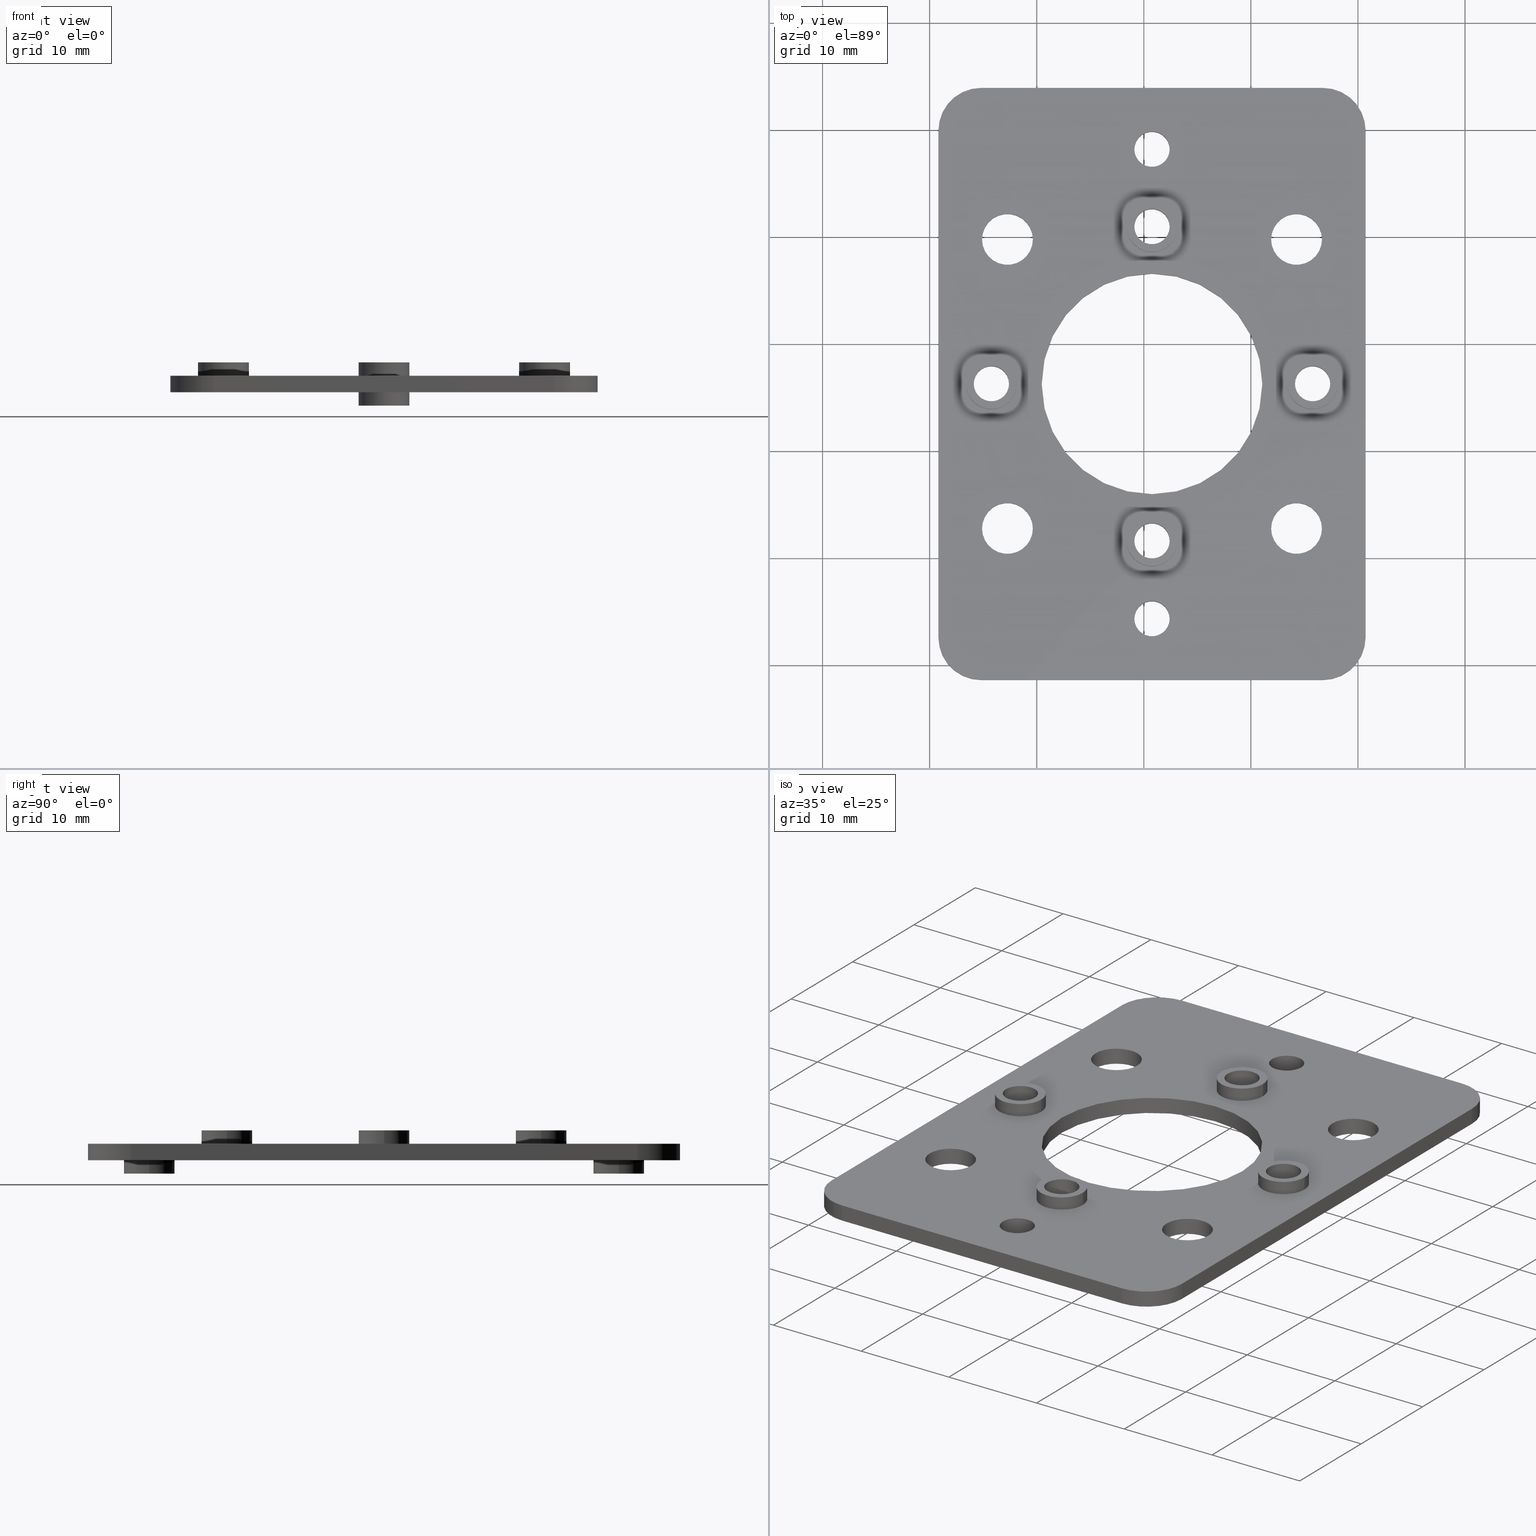
[diagram: canonical four-view strip — front | top / right | iso, engineering-drawing reading convention]
A machine part, canonical four-view strip (front | top / right | iso — engineering-drawing reading convention). The complete STEP part file that produces these views, byte-faithful:
ISO-10303-21;
HEADER;
/****************************************************************
 * Generated by software with PDE/Lib inside                    *
 * PDElib Version v51a, created Thu 12/14/2006                  *
 * International Technegroup Inc. (www.iti-oh.com)              *
 ****************************************************************/
FILE_DESCRIPTION((''),'2;1');
FILE_NAME('M:\\cad\\1PB\\ALP101\\ALP101.stp','2007-11-21T14:34:21',('Philipp'),(''),'Autodesk Inventor 2008','Autodesk Inventor 2008','');
FILE_SCHEMA(('AUTOMOTIVE_DESIGN { 1 0 10303 214 1 1 1 1 }'));
ENDSEC;
DATA;
#5=APPLICATION_CONTEXT('automotive design');
#6=APPLICATION_PROTOCOL_DEFINITION('International Standard','automotive_design',2001,#5);
#7=PRODUCT_CONTEXT('',#5,'mechanical');
#8=PRODUCT('ALP101','ALP101',$,(#7));
#9=PRODUCT_RELATED_PRODUCT_CATEGORY('part',$,(#8));
#10=PRODUCT_DEFINITION_FORMATION('',$,#8);
#11=PRODUCT_DEFINITION_CONTEXT('part definition',#5,'design');
#12=PRODUCT_DEFINITION('',$,#10,#11);
#18=(NAMED_UNIT(*)PLANE_ANGLE_UNIT()SI_UNIT($,.RADIAN.));
#19=DIMENSIONAL_EXPONENTS(0.0,0.0,0.0,0.0,0.0,0.0,0.0);
#20=PLANE_ANGLE_MEASURE_WITH_UNIT(PLANE_ANGLE_MEASURE(0.017453292500000),#18);
#24=(CONVERSION_BASED_UNIT('DEGREE',#20)NAMED_UNIT(#19)PLANE_ANGLE_UNIT());
#28=(NAMED_UNIT(*)SI_UNIT($,.STERADIAN.)SOLID_ANGLE_UNIT());
#32=(LENGTH_UNIT()NAMED_UNIT(*)SI_UNIT(.MILLI.,.METRE.));
#34=UNCERTAINTY_MEASURE_WITH_UNIT(LENGTH_MEASURE(0.010000000000000),#32,'DISTANCE_ACCURACY_VALUE','');
#36=(GEOMETRIC_REPRESENTATION_CONTEXT(3)GLOBAL_UNCERTAINTY_ASSIGNED_CONTEXT((#34))GLOBAL_UNIT_ASSIGNED_CONTEXT((#24,#28,#32))REPRESENTATION_CONTEXT('None','None'));
#37=AXIS2_PLACEMENT_3D('',#38,#39,#40);
#38=CARTESIAN_POINT('',(0.0,0.0,0.0));
#39=DIRECTION('',(0.0,0.0,1.0));
#40=DIRECTION('',(1.0,0.0,0.0));
#41=SHAPE_REPRESENTATION('',(#37),#36);
#42=PRODUCT_DEFINITION_SHAPE('','',#12);
#43=SHAPE_DEFINITION_REPRESENTATION(#42,#41);
#49=(NAMED_UNIT(*)PLANE_ANGLE_UNIT()SI_UNIT($,.RADIAN.));
#50=DIMENSIONAL_EXPONENTS(0.0,0.0,0.0,0.0,0.0,0.0,0.0);
#51=PLANE_ANGLE_MEASURE_WITH_UNIT(PLANE_ANGLE_MEASURE(0.017453292500000),#49);
#55=(CONVERSION_BASED_UNIT('DEGREE',#51)NAMED_UNIT(#50)PLANE_ANGLE_UNIT());
#59=(NAMED_UNIT(*)SI_UNIT($,.STERADIAN.)SOLID_ANGLE_UNIT());
#63=(LENGTH_UNIT()NAMED_UNIT(*)SI_UNIT(.MILLI.,.METRE.));
#65=UNCERTAINTY_MEASURE_WITH_UNIT(LENGTH_MEASURE(0.000001000000000),#63,'DISTANCE_ACCURACY_VALUE','');
#67=(GEOMETRIC_REPRESENTATION_CONTEXT(3)GLOBAL_UNCERTAINTY_ASSIGNED_CONTEXT((#65))GLOBAL_UNIT_ASSIGNED_CONTEXT((#55,#59,#63))REPRESENTATION_CONTEXT('','3D'));
#68=CARTESIAN_POINT('',(-19.233154132545625,-15.660901912274152,2.800000000000000));
#69=DIRECTION('',(0.0,0.0,-1.0));
#70=DIRECTION('',(-1.0,0.0,0.0));
#71=AXIS2_PLACEMENT_3D('',#68,#69,#70);
#72=CYLINDRICAL_SURFACE('',#71,1.650000000000000);
#73=CARTESIAN_POINT('',(-17.583154132545623,-15.660901912274152,-1.250000000000000));
#74=VERTEX_POINT('',#73);
#75=CARTESIAN_POINT('',(-19.233154132545625,-15.660901912274152,-1.250000000000000));
#76=DIRECTION('',(0.0,0.0,1.0));
#77=DIRECTION('',(-1.0,0.0,0.0));
#78=AXIS2_PLACEMENT_3D('',#75,#76,#77);
#79=CIRCLE('',#78,1.650000000000000);
#80=EDGE_CURVE('',#74,#74,#79,.T.);
#81=ORIENTED_EDGE('',*,*,#80,.F.);
#82=EDGE_LOOP('',(#81));
#83=FACE_OUTER_BOUND('',#82,.T.);
#84=CARTESIAN_POINT('',(-17.583154132545623,-15.660901912274152,1.550000000000000));
#85=VERTEX_POINT('',#84);
#86=CARTESIAN_POINT('',(-19.233154132545625,-15.660901912274152,1.550000000000000));
#87=DIRECTION('',(0.0,0.0,-1.0));
#88=DIRECTION('',(-1.0,0.0,0.0));
#89=AXIS2_PLACEMENT_3D('',#86,#87,#88);
#90=CIRCLE('',#89,1.650000000000000);
#91=EDGE_CURVE('',#85,#85,#90,.T.);
#92=ORIENTED_EDGE('',*,*,#91,.F.);
#93=EDGE_LOOP('',(#92));
#94=FACE_BOUND('',#93,.T.);
#95=ADVANCED_FACE('',(#83,#94),#72,.F.);
#96=CARTESIAN_POINT('',(-19.233154132545625,28.189098087725849,2.800000000000000));
#97=DIRECTION('',(0.0,0.0,-1.0));
#98=DIRECTION('',(-1.0,0.0,0.0));
#99=AXIS2_PLACEMENT_3D('',#96,#97,#98);
#100=CYLINDRICAL_SURFACE('',#99,1.650000000000000);
#101=CARTESIAN_POINT('',(-17.583154132545623,28.189098087725849,-1.250000000000000));
#102=VERTEX_POINT('',#101);
#103=CARTESIAN_POINT('',(-19.233154132545625,28.189098087725849,-1.250000000000000));
#104=DIRECTION('',(0.0,0.0,1.0));
#105=DIRECTION('',(-1.0,0.0,0.0));
#106=AXIS2_PLACEMENT_3D('',#103,#104,#105);
#107=CIRCLE('',#106,1.650000000000000);
#108=EDGE_CURVE('',#102,#102,#107,.T.);
#109=ORIENTED_EDGE('',*,*,#108,.F.);
#110=EDGE_LOOP('',(#109));
#111=FACE_OUTER_BOUND('',#110,.T.);
#112=CARTESIAN_POINT('',(-17.583154132545623,28.189098087725849,1.550000000000000));
#113=VERTEX_POINT('',#112);
#114=CARTESIAN_POINT('',(-19.233154132545625,28.189098087725849,1.550000000000000));
#115=DIRECTION('',(0.0,0.0,-1.0));
#116=DIRECTION('',(-1.0,0.0,0.0));
#117=AXIS2_PLACEMENT_3D('',#114,#115,#116);
#118=CIRCLE('',#117,1.650000000000000);
#119=EDGE_CURVE('',#113,#113,#118,.T.);
#120=ORIENTED_EDGE('',*,*,#119,.F.);
#121=EDGE_LOOP('',(#120));
#122=FACE_BOUND('',#121,.T.);
#123=ADVANCED_FACE('',(#111,#122),#100,.F.);
#124=CARTESIAN_POINT('',(-4.233154132545627,6.264098087725847,2.800000000000000));
#125=DIRECTION('',(0.0,0.0,-1.0));
#126=DIRECTION('',(-1.0,0.0,0.0));
#127=AXIS2_PLACEMENT_3D('',#124,#125,#126);
#128=CYLINDRICAL_SURFACE('',#127,1.650000000000000);
#129=CARTESIAN_POINT('',(-2.583154132545626,6.264098087725847,0.0));
#130=VERTEX_POINT('',#129);
#131=CARTESIAN_POINT('',(-4.233154132545627,6.264098087725847,0.0));
#132=DIRECTION('',(0.0,0.0,1.0));
#133=DIRECTION('',(-1.0,0.0,0.0));
#134=AXIS2_PLACEMENT_3D('',#131,#132,#133);
#135=CIRCLE('',#134,1.650000000000000);
#136=EDGE_CURVE('',#130,#130,#135,.T.);
#137=ORIENTED_EDGE('',*,*,#136,.F.);
#138=EDGE_LOOP('',(#137));
#139=FACE_OUTER_BOUND('',#138,.T.);
#140=CARTESIAN_POINT('',(-2.583154132545626,6.264098087725847,2.800000000000000));
#141=VERTEX_POINT('',#140);
#142=CARTESIAN_POINT('',(-4.233154132545627,6.264098087725847,2.800000000000000));
#143=DIRECTION('',(0.0,0.0,-1.0));
#144=DIRECTION('',(-1.0,0.0,0.0));
#145=AXIS2_PLACEMENT_3D('',#142,#143,#144);
#146=CIRCLE('',#145,1.650000000000000);
#147=EDGE_CURVE('',#141,#141,#146,.T.);
#148=ORIENTED_EDGE('',*,*,#147,.F.);
#149=EDGE_LOOP('',(#148));
#150=FACE_BOUND('',#149,.T.);
#151=ADVANCED_FACE('',(#139,#150),#128,.F.);
#152=CARTESIAN_POINT('',(-19.233154132545625,-8.410901912274156,2.800000000000000));
#153=DIRECTION('',(0.0,0.0,-1.0));
#154=DIRECTION('',(-1.0,0.0,0.0));
#155=AXIS2_PLACEMENT_3D('',#152,#153,#154);
#156=CYLINDRICAL_SURFACE('',#155,1.650000000000000);
#157=CARTESIAN_POINT('',(-17.583154132545623,-8.410901912274156,0.0));
#158=VERTEX_POINT('',#157);
#159=CARTESIAN_POINT('',(-19.233154132545625,-8.410901912274156,0.0));
#160=DIRECTION('',(0.0,0.0,1.0));
#161=DIRECTION('',(-1.0,0.0,0.0));
#162=AXIS2_PLACEMENT_3D('',#159,#160,#161);
#163=CIRCLE('',#162,1.650000000000000);
#164=EDGE_CURVE('',#158,#158,#163,.T.);
#165=ORIENTED_EDGE('',*,*,#164,.F.);
#166=EDGE_LOOP('',(#165));
#167=FACE_OUTER_BOUND('',#166,.T.);
#168=CARTESIAN_POINT('',(-17.583154132545623,-8.410901912274156,2.800000000000000));
#169=VERTEX_POINT('',#168);
#170=CARTESIAN_POINT('',(-19.233154132545625,-8.410901912274156,2.800000000000000));
#171=DIRECTION('',(0.0,0.0,-1.0));
#172=DIRECTION('',(-1.0,0.0,0.0));
#173=AXIS2_PLACEMENT_3D('',#170,#171,#172);
#174=CIRCLE('',#173,1.650000000000000);
#175=EDGE_CURVE('',#169,#169,#174,.T.);
#176=ORIENTED_EDGE('',*,*,#175,.F.);
#177=EDGE_LOOP('',(#176));
#178=FACE_BOUND('',#177,.T.);
#179=ADVANCED_FACE('',(#167,#178),#156,.F.);
#180=CARTESIAN_POINT('',(-34.233154132545629,6.264098087725847,2.800000000000000));
#181=DIRECTION('',(0.0,0.0,-1.0));
#182=DIRECTION('',(-1.0,0.0,0.0));
#183=AXIS2_PLACEMENT_3D('',#180,#181,#182);
#184=CYLINDRICAL_SURFACE('',#183,1.650000000000000);
#185=CARTESIAN_POINT('',(-32.583154132545630,6.264098087725847,0.0));
#186=VERTEX_POINT('',#185);
#187=CARTESIAN_POINT('',(-34.233154132545629,6.264098087725847,0.0));
#188=DIRECTION('',(0.0,0.0,1.0));
#189=DIRECTION('',(-1.0,0.0,0.0));
#190=AXIS2_PLACEMENT_3D('',#187,#188,#189);
#191=CIRCLE('',#190,1.650000000000000);
#192=EDGE_CURVE('',#186,#186,#191,.T.);
#193=ORIENTED_EDGE('',*,*,#192,.F.);
#194=EDGE_LOOP('',(#193));
#195=FACE_OUTER_BOUND('',#194,.T.);
#196=CARTESIAN_POINT('',(-32.583154132545630,6.264098087725847,2.800000000000000));
#197=VERTEX_POINT('',#196);
#198=CARTESIAN_POINT('',(-34.233154132545629,6.264098087725847,2.800000000000000));
#199=DIRECTION('',(0.0,0.0,-1.0));
#200=DIRECTION('',(-1.0,0.0,0.0));
#201=AXIS2_PLACEMENT_3D('',#198,#199,#200);
#202=CIRCLE('',#201,1.650000000000000);
#203=EDGE_CURVE('',#197,#197,#202,.T.);
#204=ORIENTED_EDGE('',*,*,#203,.F.);
#205=EDGE_LOOP('',(#204));
#206=FACE_BOUND('',#205,.T.);
#207=ADVANCED_FACE('',(#195,#206),#184,.F.);
#208=CARTESIAN_POINT('',(-19.233154132545625,20.939098087725849,2.800000000000000));
#209=DIRECTION('',(0.0,0.0,-1.0));
#210=DIRECTION('',(-1.0,0.0,0.0));
#211=AXIS2_PLACEMENT_3D('',#208,#209,#210);
#212=CYLINDRICAL_SURFACE('',#211,1.650000000000000);
#213=CARTESIAN_POINT('',(-17.583154132545623,20.939098087725849,0.0));
#214=VERTEX_POINT('',#213);
#215=CARTESIAN_POINT('',(-19.233154132545625,20.939098087725849,0.0));
#216=DIRECTION('',(0.0,0.0,1.0));
#217=DIRECTION('',(-1.0,0.0,0.0));
#218=AXIS2_PLACEMENT_3D('',#215,#216,#217);
#219=CIRCLE('',#218,1.650000000000000);
#220=EDGE_CURVE('',#214,#214,#219,.T.);
#221=ORIENTED_EDGE('',*,*,#220,.F.);
#222=EDGE_LOOP('',(#221));
#223=FACE_OUTER_BOUND('',#222,.T.);
#224=CARTESIAN_POINT('',(-17.583154132545623,20.939098087725849,2.800000000000000));
#225=VERTEX_POINT('',#224);
#226=CARTESIAN_POINT('',(-19.233154132545625,20.939098087725849,2.800000000000000));
#227=DIRECTION('',(0.0,0.0,-1.0));
#228=DIRECTION('',(-1.0,0.0,0.0));
#229=AXIS2_PLACEMENT_3D('',#226,#227,#228);
#230=CIRCLE('',#229,1.650000000000000);
#231=EDGE_CURVE('',#225,#225,#230,.T.);
#232=ORIENTED_EDGE('',*,*,#231,.F.);
#233=EDGE_LOOP('',(#232));
#234=FACE_BOUND('',#233,.T.);
#235=ADVANCED_FACE('',(#223,#234),#212,.F.);
#236=CARTESIAN_POINT('',(-19.233154132545625,28.189098087725849,1.550000000000000));
#237=DIRECTION('',(0.0,0.0,-1.0));
#238=DIRECTION('',(-1.0,0.0,0.0));
#239=AXIS2_PLACEMENT_3D('',#236,#237,#238);
#240=CYLINDRICAL_SURFACE('',#239,2.375000000000000);
#241=CARTESIAN_POINT('',(-16.858154132545625,28.189098087725849,-1.250000000000000));
#242=VERTEX_POINT('',#241);
#243=CARTESIAN_POINT('',(-19.233154132545625,28.189098087725849,-1.250000000000000));
#244=DIRECTION('',(0.0,0.0,1.0));
#245=DIRECTION('',(-1.0,0.0,0.0));
#246=AXIS2_PLACEMENT_3D('',#243,#244,#245);
#247=CIRCLE('',#246,2.375000000000000);
#248=EDGE_CURVE('',#242,#242,#247,.T.);
#249=ORIENTED_EDGE('',*,*,#248,.T.);
#250=EDGE_LOOP('',(#249));
#251=FACE_OUTER_BOUND('',#250,.T.);
#252=CARTESIAN_POINT('',(-16.858154132545625,28.189098087725849,0.0));
#253=VERTEX_POINT('',#252);
#254=CARTESIAN_POINT('',(-19.233154132545625,28.189098087725849,0.0));
#255=DIRECTION('',(0.0,0.0,1.0));
#256=DIRECTION('',(-1.0,0.0,0.0));
#257=AXIS2_PLACEMENT_3D('',#254,#255,#256);
#258=CIRCLE('',#257,2.375000000000000);
#259=EDGE_CURVE('',#253,#253,#258,.T.);
#260=ORIENTED_EDGE('',*,*,#259,.F.);
#261=EDGE_LOOP('',(#260));
#262=FACE_BOUND('',#261,.T.);
#263=ADVANCED_FACE('',(#251,#262),#240,.T.);
#264=CARTESIAN_POINT('',(-19.233154132545625,6.264098087725847,-1.250000000000000));
#265=DIRECTION('',(0.0,0.0,-1.0));
#266=DIRECTION('',(-1.0,0.0,0.0));
#267=AXIS2_PLACEMENT_3D('',#264,#265,#266);
#268=PLANE('',#267);
#269=ORIENTED_EDGE('',*,*,#248,.F.);
#270=EDGE_LOOP('',(#269));
#271=FACE_OUTER_BOUND('',#270,.T.);
#272=ORIENTED_EDGE('',*,*,#108,.T.);
#273=EDGE_LOOP('',(#272));
#274=FACE_BOUND('',#273,.T.);
#275=ADVANCED_FACE('',(#271,#274),#268,.T.);
#276=CARTESIAN_POINT('',(-19.233154132545625,-15.660901912274154,1.550000000000000));
#277=DIRECTION('',(0.0,0.0,-1.0));
#278=DIRECTION('',(-1.0,0.0,0.0));
#279=AXIS2_PLACEMENT_3D('',#276,#277,#278);
#280=CYLINDRICAL_SURFACE('',#279,2.375000000000000);
#281=CARTESIAN_POINT('',(-16.858154132545625,-15.660901912274154,-1.250000000000000));
#282=VERTEX_POINT('',#281);
#283=CARTESIAN_POINT('',(-19.233154132545625,-15.660901912274154,-1.250000000000000));
#284=DIRECTION('',(0.0,0.0,1.0));
#285=DIRECTION('',(-1.0,0.0,0.0));
#286=AXIS2_PLACEMENT_3D('',#283,#284,#285);
#287=CIRCLE('',#286,2.375000000000000);
#288=EDGE_CURVE('',#282,#282,#287,.T.);
#289=ORIENTED_EDGE('',*,*,#288,.T.);
#290=EDGE_LOOP('',(#289));
#291=FACE_OUTER_BOUND('',#290,.T.);
#292=CARTESIAN_POINT('',(-16.858154132545625,-15.660901912274154,0.0));
#293=VERTEX_POINT('',#292);
#294=CARTESIAN_POINT('',(-19.233154132545625,-15.660901912274154,0.0));
#295=DIRECTION('',(0.0,0.0,1.0));
#296=DIRECTION('',(-1.0,0.0,0.0));
#297=AXIS2_PLACEMENT_3D('',#294,#295,#296);
#298=CIRCLE('',#297,2.375000000000000);
#299=EDGE_CURVE('',#293,#293,#298,.T.);
#300=ORIENTED_EDGE('',*,*,#299,.F.);
#301=EDGE_LOOP('',(#300));
#302=FACE_BOUND('',#301,.T.);
#303=ADVANCED_FACE('',(#291,#302),#280,.T.);
#304=CARTESIAN_POINT('',(-19.233154132545625,6.264098087725847,-1.250000000000000));
#305=DIRECTION('',(0.0,0.0,-1.0));
#306=DIRECTION('',(-1.0,0.0,0.0));
#307=AXIS2_PLACEMENT_3D('',#304,#305,#306);
#308=PLANE('',#307);
#309=ORIENTED_EDGE('',*,*,#288,.F.);
#310=EDGE_LOOP('',(#309));
#311=FACE_OUTER_BOUND('',#310,.T.);
#312=ORIENTED_EDGE('',*,*,#80,.T.);
#313=EDGE_LOOP('',(#312));
#314=FACE_BOUND('',#313,.T.);
#315=ADVANCED_FACE('',(#311,#314),#308,.T.);
#316=CARTESIAN_POINT('',(-4.233154132545627,6.264098087725847,1.550000000000000));
#317=DIRECTION('',(0.0,0.0,1.0));
#318=DIRECTION('',(-1.0,0.0,0.0));
#319=AXIS2_PLACEMENT_3D('',#316,#317,#318);
#320=CYLINDRICAL_SURFACE('',#319,2.375000000000000);
#321=CARTESIAN_POINT('',(-1.858154132545627,6.264098087725847,2.800000000000000));
#322=VERTEX_POINT('',#321);
#323=CARTESIAN_POINT('',(-4.233154132545627,6.264098087725847,2.800000000000000));
#324=DIRECTION('',(0.0,0.0,-1.0));
#325=DIRECTION('',(-1.0,0.0,0.0));
#326=AXIS2_PLACEMENT_3D('',#323,#324,#325);
#327=CIRCLE('',#326,2.375000000000000);
#328=EDGE_CURVE('',#322,#322,#327,.T.);
#329=ORIENTED_EDGE('',*,*,#328,.T.);
#330=EDGE_LOOP('',(#329));
#331=FACE_OUTER_BOUND('',#330,.T.);
#332=CARTESIAN_POINT('',(-1.858154132545627,6.264098087725847,1.550000000000000));
#333=VERTEX_POINT('',#332);
#334=CARTESIAN_POINT('',(-4.233154132545627,6.264098087725847,1.550000000000000));
#335=DIRECTION('',(0.0,0.0,-1.0));
#336=DIRECTION('',(-1.0,0.0,0.0));
#337=AXIS2_PLACEMENT_3D('',#334,#335,#336);
#338=CIRCLE('',#337,2.375000000000000);
#339=EDGE_CURVE('',#333,#333,#338,.T.);
#340=ORIENTED_EDGE('',*,*,#339,.F.);
#341=EDGE_LOOP('',(#340));
#342=FACE_BOUND('',#341,.T.);
#343=ADVANCED_FACE('',(#331,#342),#320,.T.);
#344=CARTESIAN_POINT('',(-4.233154132545627,6.264098087725847,2.800000000000000));
#345=DIRECTION('',(0.0,0.0,-1.0));
#346=DIRECTION('',(-1.0,0.0,0.0));
#347=AXIS2_PLACEMENT_3D('',#344,#345,#346);
#348=PLANE('',#347);
#349=ORIENTED_EDGE('',*,*,#328,.F.);
#350=EDGE_LOOP('',(#349));
#351=FACE_OUTER_BOUND('',#350,.T.);
#352=ORIENTED_EDGE('',*,*,#147,.T.);
#353=EDGE_LOOP('',(#352));
#354=FACE_BOUND('',#353,.T.);
#355=ADVANCED_FACE('',(#351,#354),#348,.F.);
#356=CARTESIAN_POINT('',(-34.233154132545629,6.264098087725847,1.550000000000000));
#357=DIRECTION('',(0.0,0.0,1.0));
#358=DIRECTION('',(-1.0,0.0,0.0));
#359=AXIS2_PLACEMENT_3D('',#356,#357,#358);
#360=CYLINDRICAL_SURFACE('',#359,2.375000000000000);
#361=CARTESIAN_POINT('',(-31.858154132545629,6.264098087725847,2.800000000000000));
#362=VERTEX_POINT('',#361);
#363=CARTESIAN_POINT('',(-34.233154132545629,6.264098087725847,2.800000000000000));
#364=DIRECTION('',(0.0,0.0,-1.0));
#365=DIRECTION('',(-1.0,0.0,0.0));
#366=AXIS2_PLACEMENT_3D('',#363,#364,#365);
#367=CIRCLE('',#366,2.375000000000000);
#368=EDGE_CURVE('',#362,#362,#367,.T.);
#369=ORIENTED_EDGE('',*,*,#368,.T.);
#370=EDGE_LOOP('',(#369));
#371=FACE_OUTER_BOUND('',#370,.T.);
#372=CARTESIAN_POINT('',(-31.858154132545629,6.264098087725847,1.550000000000000));
#373=VERTEX_POINT('',#372);
#374=CARTESIAN_POINT('',(-34.233154132545629,6.264098087725847,1.550000000000000));
#375=DIRECTION('',(0.0,0.0,-1.0));
#376=DIRECTION('',(-1.0,0.0,0.0));
#377=AXIS2_PLACEMENT_3D('',#374,#375,#376);
#378=CIRCLE('',#377,2.375000000000000);
#379=EDGE_CURVE('',#373,#373,#378,.T.);
#380=ORIENTED_EDGE('',*,*,#379,.F.);
#381=EDGE_LOOP('',(#380));
#382=FACE_BOUND('',#381,.T.);
#383=ADVANCED_FACE('',(#371,#382),#360,.T.);
#384=CARTESIAN_POINT('',(-34.233154132545629,6.264098087725847,2.800000000000000));
#385=DIRECTION('',(0.0,0.0,-1.0));
#386=DIRECTION('',(-1.0,0.0,0.0));
#387=AXIS2_PLACEMENT_3D('',#384,#385,#386);
#388=PLANE('',#387);
#389=ORIENTED_EDGE('',*,*,#368,.F.);
#390=EDGE_LOOP('',(#389));
#391=FACE_OUTER_BOUND('',#390,.T.);
#392=ORIENTED_EDGE('',*,*,#203,.T.);
#393=EDGE_LOOP('',(#392));
#394=FACE_BOUND('',#393,.T.);
#395=ADVANCED_FACE('',(#391,#394),#388,.F.);
#396=CARTESIAN_POINT('',(-19.233154132545625,-8.410901912274154,1.550000000000000));
#397=DIRECTION('',(0.0,0.0,1.0));
#398=DIRECTION('',(-1.0,0.0,0.0));
#399=AXIS2_PLACEMENT_3D('',#396,#397,#398);
#400=CYLINDRICAL_SURFACE('',#399,2.375000000000000);
#401=CARTESIAN_POINT('',(-16.858154132545625,-8.410901912274154,2.800000000000000));
#402=VERTEX_POINT('',#401);
#403=CARTESIAN_POINT('',(-19.233154132545625,-8.410901912274154,2.800000000000000));
#404=DIRECTION('',(0.0,0.0,-1.0));
#405=DIRECTION('',(-1.0,0.0,0.0));
#406=AXIS2_PLACEMENT_3D('',#403,#404,#405);
#407=CIRCLE('',#406,2.375000000000000);
#408=EDGE_CURVE('',#402,#402,#407,.T.);
#409=ORIENTED_EDGE('',*,*,#408,.T.);
#410=EDGE_LOOP('',(#409));
#411=FACE_OUTER_BOUND('',#410,.T.);
#412=CARTESIAN_POINT('',(-16.858154132545625,-8.410901912274154,1.550000000000000));
#413=VERTEX_POINT('',#412);
#414=CARTESIAN_POINT('',(-19.233154132545625,-8.410901912274154,1.550000000000000));
#415=DIRECTION('',(0.0,0.0,-1.0));
#416=DIRECTION('',(-1.0,0.0,0.0));
#417=AXIS2_PLACEMENT_3D('',#414,#415,#416);
#418=CIRCLE('',#417,2.375000000000000);
#419=EDGE_CURVE('',#413,#413,#418,.T.);
#420=ORIENTED_EDGE('',*,*,#419,.F.);
#421=EDGE_LOOP('',(#420));
#422=FACE_BOUND('',#421,.T.);
#423=ADVANCED_FACE('',(#411,#422),#400,.T.);
#424=CARTESIAN_POINT('',(-19.233154132545625,-8.410901912274154,2.800000000000000));
#425=DIRECTION('',(0.0,0.0,-1.0));
#426=DIRECTION('',(-1.0,0.0,0.0));
#427=AXIS2_PLACEMENT_3D('',#424,#425,#426);
#428=PLANE('',#427);
#429=ORIENTED_EDGE('',*,*,#408,.F.);
#430=EDGE_LOOP('',(#429));
#431=FACE_OUTER_BOUND('',#430,.T.);
#432=ORIENTED_EDGE('',*,*,#175,.T.);
#433=EDGE_LOOP('',(#432));
#434=FACE_BOUND('',#433,.T.);
#435=ADVANCED_FACE('',(#431,#434),#428,.F.);
#436=CARTESIAN_POINT('',(-19.233154132545625,20.939098087725849,1.550000000000000));
#437=DIRECTION('',(0.0,0.0,1.0));
#438=DIRECTION('',(-1.0,0.0,0.0));
#439=AXIS2_PLACEMENT_3D('',#436,#437,#438);
#440=CYLINDRICAL_SURFACE('',#439,2.375000000000000);
#441=CARTESIAN_POINT('',(-16.858154132545625,20.939098087725849,2.800000000000000));
#442=VERTEX_POINT('',#441);
#443=CARTESIAN_POINT('',(-19.233154132545625,20.939098087725849,2.800000000000000));
#444=DIRECTION('',(0.0,0.0,-1.0));
#445=DIRECTION('',(-1.0,0.0,0.0));
#446=AXIS2_PLACEMENT_3D('',#443,#444,#445);
#447=CIRCLE('',#446,2.375000000000000);
#448=EDGE_CURVE('',#442,#442,#447,.T.);
#449=ORIENTED_EDGE('',*,*,#448,.T.);
#450=EDGE_LOOP('',(#449));
#451=FACE_OUTER_BOUND('',#450,.T.);
#452=CARTESIAN_POINT('',(-16.858154132545625,20.939098087725849,1.550000000000000));
#453=VERTEX_POINT('',#452);
#454=CARTESIAN_POINT('',(-19.233154132545625,20.939098087725849,1.550000000000000));
#455=DIRECTION('',(0.0,0.0,-1.0));
#456=DIRECTION('',(-1.0,0.0,0.0));
#457=AXIS2_PLACEMENT_3D('',#454,#455,#456);
#458=CIRCLE('',#457,2.375000000000000);
#459=EDGE_CURVE('',#453,#453,#458,.T.);
#460=ORIENTED_EDGE('',*,*,#459,.F.);
#461=EDGE_LOOP('',(#460));
#462=FACE_BOUND('',#461,.T.);
#463=ADVANCED_FACE('',(#451,#462),#440,.T.);
#464=CARTESIAN_POINT('',(-19.233154132545625,20.939098087725849,2.800000000000000));
#465=DIRECTION('',(0.0,0.0,-1.0));
#466=DIRECTION('',(-1.0,0.0,0.0));
#467=AXIS2_PLACEMENT_3D('',#464,#465,#466);
#468=PLANE('',#467);
#469=ORIENTED_EDGE('',*,*,#448,.F.);
#470=EDGE_LOOP('',(#469));
#471=FACE_OUTER_BOUND('',#470,.T.);
#472=ORIENTED_EDGE('',*,*,#231,.T.);
#473=EDGE_LOOP('',(#472));
#474=FACE_BOUND('',#473,.T.);
#475=ADVANCED_FACE('',(#471,#474),#468,.F.);
#476=CARTESIAN_POINT('',(-19.233154132545625,6.264098087725847,1.550000000000000));
#477=DIRECTION('',(0.0,0.0,-1.0));
#478=DIRECTION('',(-1.0,0.0,0.0));
#479=AXIS2_PLACEMENT_3D('',#476,#477,#478);
#480=CYLINDRICAL_SURFACE('',#479,10.300000000000001);
#481=CARTESIAN_POINT('',(-8.933154132545624,6.264098087725848,0.0));
#482=VERTEX_POINT('',#481);
#483=CARTESIAN_POINT('',(-19.233154132545625,6.264098087725847,0.0));
#484=DIRECTION('',(0.0,0.0,1.0));
#485=DIRECTION('',(-1.0,0.0,0.0));
#486=AXIS2_PLACEMENT_3D('',#483,#484,#485);
#487=CIRCLE('',#486,10.300000000000001);
#488=EDGE_CURVE('',#482,#482,#487,.T.);
#489=ORIENTED_EDGE('',*,*,#488,.F.);
#490=EDGE_LOOP('',(#489));
#491=FACE_OUTER_BOUND('',#490,.T.);
#492=CARTESIAN_POINT('',(-8.933154132545624,6.264098087725848,1.550000000000000));
#493=VERTEX_POINT('',#492);
#494=CARTESIAN_POINT('',(-19.233154132545625,6.264098087725847,1.550000000000000));
#495=DIRECTION('',(0.0,0.0,-1.0));
#496=DIRECTION('',(-1.0,0.0,0.0));
#497=AXIS2_PLACEMENT_3D('',#494,#495,#496);
#498=CIRCLE('',#497,10.300000000000001);
#499=EDGE_CURVE('',#493,#493,#498,.T.);
#500=ORIENTED_EDGE('',*,*,#499,.F.);
#501=EDGE_LOOP('',(#500));
#502=FACE_BOUND('',#501,.T.);
#503=ADVANCED_FACE('',(#491,#502),#480,.F.);
#504=CARTESIAN_POINT('',(-32.733154132545614,-7.235901912274155,1.550000000000000));
#505=DIRECTION('',(0.0,0.0,-1.0));
#506=DIRECTION('',(-1.0,0.0,0.0));
#507=AXIS2_PLACEMENT_3D('',#504,#505,#506);
#508=CYLINDRICAL_SURFACE('',#507,2.375000000000000);
#509=CARTESIAN_POINT('',(-30.358154132545614,-7.235901912274155,0.0));
#510=VERTEX_POINT('',#509);
#511=CARTESIAN_POINT('',(-32.733154132545614,-7.235901912274155,0.0));
#512=DIRECTION('',(0.0,0.0,1.0));
#513=DIRECTION('',(-1.0,0.0,0.0));
#514=AXIS2_PLACEMENT_3D('',#511,#512,#513);
#515=CIRCLE('',#514,2.375000000000000);
#516=EDGE_CURVE('',#510,#510,#515,.T.);
#517=ORIENTED_EDGE('',*,*,#516,.F.);
#518=EDGE_LOOP('',(#517));
#519=FACE_OUTER_BOUND('',#518,.T.);
#520=CARTESIAN_POINT('',(-30.358154132545614,-7.235901912274155,1.550000000000000));
#521=VERTEX_POINT('',#520);
#522=CARTESIAN_POINT('',(-32.733154132545614,-7.235901912274155,1.550000000000000));
#523=DIRECTION('',(0.0,0.0,-1.0));
#524=DIRECTION('',(-1.0,0.0,0.0));
#525=AXIS2_PLACEMENT_3D('',#522,#523,#524);
#526=CIRCLE('',#525,2.375000000000000);
#527=EDGE_CURVE('',#521,#521,#526,.T.);
#528=ORIENTED_EDGE('',*,*,#527,.F.);
#529=EDGE_LOOP('',(#528));
#530=FACE_BOUND('',#529,.T.);
#531=ADVANCED_FACE('',(#519,#530),#508,.F.);
#532=CARTESIAN_POINT('',(-5.733154132545622,-7.235901912274159,1.550000000000000));
#533=DIRECTION('',(0.0,0.0,-1.0));
#534=DIRECTION('',(-1.0,0.0,0.0));
#535=AXIS2_PLACEMENT_3D('',#532,#533,#534);
#536=CYLINDRICAL_SURFACE('',#535,2.375000000000000);
#537=CARTESIAN_POINT('',(-3.358154132545621,-7.235901912274159,0.0));
#538=VERTEX_POINT('',#537);
#539=CARTESIAN_POINT('',(-5.733154132545622,-7.235901912274159,0.0));
#540=DIRECTION('',(0.0,0.0,1.0));
#541=DIRECTION('',(-1.0,0.0,0.0));
#542=AXIS2_PLACEMENT_3D('',#539,#540,#541);
#543=CIRCLE('',#542,2.375000000000000);
#544=EDGE_CURVE('',#538,#538,#543,.T.);
#545=ORIENTED_EDGE('',*,*,#544,.F.);
#546=EDGE_LOOP('',(#545));
#547=FACE_OUTER_BOUND('',#546,.T.);
#548=CARTESIAN_POINT('',(-3.358154132545621,-7.235901912274159,1.550000000000000));
#549=VERTEX_POINT('',#548);
#550=CARTESIAN_POINT('',(-5.733154132545622,-7.235901912274159,1.550000000000000));
#551=DIRECTION('',(0.0,0.0,-1.0));
#552=DIRECTION('',(-1.0,0.0,0.0));
#553=AXIS2_PLACEMENT_3D('',#550,#551,#552);
#554=CIRCLE('',#553,2.375000000000000);
#555=EDGE_CURVE('',#549,#549,#554,.T.);
#556=ORIENTED_EDGE('',*,*,#555,.F.);
#557=EDGE_LOOP('',(#556));
#558=FACE_BOUND('',#557,.T.);
#559=ADVANCED_FACE('',(#547,#558),#536,.F.);
#560=CARTESIAN_POINT('',(-5.733154132545622,19.764098087725838,1.550000000000000));
#561=DIRECTION('',(0.0,0.0,-1.0));
#562=DIRECTION('',(-1.0,0.0,0.0));
#563=AXIS2_PLACEMENT_3D('',#560,#561,#562);
#564=CYLINDRICAL_SURFACE('',#563,2.375000000000000);
#565=CARTESIAN_POINT('',(-3.358154132545622,19.764098087725838,0.0));
#566=VERTEX_POINT('',#565);
#567=CARTESIAN_POINT('',(-5.733154132545622,19.764098087725838,0.0));
#568=DIRECTION('',(0.0,0.0,1.0));
#569=DIRECTION('',(-1.0,0.0,0.0));
#570=AXIS2_PLACEMENT_3D('',#567,#568,#569);
#571=CIRCLE('',#570,2.375000000000000);
#572=EDGE_CURVE('',#566,#566,#571,.T.);
#573=ORIENTED_EDGE('',*,*,#572,.F.);
#574=EDGE_LOOP('',(#573));
#575=FACE_OUTER_BOUND('',#574,.T.);
#576=CARTESIAN_POINT('',(-3.358154132545622,19.764098087725838,1.550000000000000));
#577=VERTEX_POINT('',#576);
#578=CARTESIAN_POINT('',(-5.733154132545622,19.764098087725838,1.550000000000000));
#579=DIRECTION('',(0.0,0.0,-1.0));
#580=DIRECTION('',(-1.0,0.0,0.0));
#581=AXIS2_PLACEMENT_3D('',#578,#579,#580);
#582=CIRCLE('',#581,2.375000000000000);
#583=EDGE_CURVE('',#577,#577,#582,.T.);
#584=ORIENTED_EDGE('',*,*,#583,.F.);
#585=EDGE_LOOP('',(#584));
#586=FACE_BOUND('',#585,.T.);
#587=ADVANCED_FACE('',(#575,#586),#564,.F.);
#588=CARTESIAN_POINT('',(-32.733154132545621,19.764098087725845,1.550000000000000));
#589=DIRECTION('',(0.0,0.0,-1.0));
#590=DIRECTION('',(-1.0,0.0,0.0));
#591=AXIS2_PLACEMENT_3D('',#588,#589,#590);
#592=CYLINDRICAL_SURFACE('',#591,2.375000000000000);
#593=CARTESIAN_POINT('',(-30.358154132545625,19.764098087725845,0.0));
#594=VERTEX_POINT('',#593);
#595=CARTESIAN_POINT('',(-32.733154132545621,19.764098087725845,0.0));
#596=DIRECTION('',(0.0,0.0,1.0));
#597=DIRECTION('',(-1.0,0.0,0.0));
#598=AXIS2_PLACEMENT_3D('',#595,#596,#597);
#599=CIRCLE('',#598,2.375000000000000);
#600=EDGE_CURVE('',#594,#594,#599,.T.);
#601=ORIENTED_EDGE('',*,*,#600,.F.);
#602=EDGE_LOOP('',(#601));
#603=FACE_OUTER_BOUND('',#602,.T.);
#604=CARTESIAN_POINT('',(-30.358154132545625,19.764098087725845,1.550000000000000));
#605=VERTEX_POINT('',#604);
#606=CARTESIAN_POINT('',(-32.733154132545621,19.764098087725845,1.550000000000000));
#607=DIRECTION('',(0.0,0.0,-1.0));
#608=DIRECTION('',(-1.0,0.0,0.0));
#609=AXIS2_PLACEMENT_3D('',#606,#607,#608);
#610=CIRCLE('',#609,2.375000000000000);
#611=EDGE_CURVE('',#605,#605,#610,.T.);
#612=ORIENTED_EDGE('',*,*,#611,.F.);
#613=EDGE_LOOP('',(#612));
#614=FACE_BOUND('',#613,.T.);
#615=ADVANCED_FACE('',(#603,#614),#592,.F.);
#616=CARTESIAN_POINT('',(-35.183154132545631,33.914098087725847,0.0));
#617=DIRECTION('',(0.0,1.0,0.0));
#618=DIRECTION('',(0.0,0.0,1.0));
#619=AXIS2_PLACEMENT_3D('',#616,#617,#618);
#620=PLANE('',#619);
#621=CARTESIAN_POINT('',(-35.183154132545631,33.914098087725847,1.550000000000000));
#622=VERTEX_POINT('',#621);
#623=CARTESIAN_POINT('',(-3.283154132545636,33.914098087725847,1.550000000000000));
#624=VERTEX_POINT('',#623);
#625=CARTESIAN_POINT('',(-35.183154132545631,33.914098087725847,1.550000000000000));
#626=DIRECTION('',(1.0,0.0,0.0));
#627=VECTOR('',#626,31.899999999999995);
#628=LINE('',#625,#627);
#629=EDGE_CURVE('',#622,#624,#628,.T.);
#630=ORIENTED_EDGE('',*,*,#629,.T.);
#631=CARTESIAN_POINT('',(-3.283154132545636,33.914098087725847,0.0));
#632=VERTEX_POINT('',#631);
#633=CARTESIAN_POINT('',(-3.283154132545636,33.914098087725847,0.0));
#634=DIRECTION('',(0.0,0.0,1.0));
#635=VECTOR('',#634,1.550000000000000);
#636=LINE('',#633,#635);
#637=EDGE_CURVE('',#632,#624,#636,.T.);
#638=ORIENTED_EDGE('',*,*,#637,.F.);
#639=CARTESIAN_POINT('',(-35.183154132545631,33.914098087725847,0.0));
#640=VERTEX_POINT('',#639);
#641=CARTESIAN_POINT('',(-3.283154132545636,33.914098087725847,0.0));
#642=DIRECTION('',(-1.0,0.0,0.0));
#643=VECTOR('',#642,31.899999999999995);
#644=LINE('',#641,#643);
#645=EDGE_CURVE('',#632,#640,#644,.T.);
#646=ORIENTED_EDGE('',*,*,#645,.T.);
#647=CARTESIAN_POINT('',(-35.183154132545631,33.914098087725847,0.0));
#648=DIRECTION('',(0.0,0.0,1.0));
#649=VECTOR('',#648,1.550000000000000);
#650=LINE('',#647,#649);
#651=EDGE_CURVE('',#640,#622,#650,.T.);
#652=ORIENTED_EDGE('',*,*,#651,.T.);
#653=EDGE_LOOP('',(#630,#638,#646,#652));
#654=FACE_OUTER_BOUND('',#653,.T.);
#655=ADVANCED_FACE('',(#654),#620,.T.);
#656=CARTESIAN_POINT('',(-3.283154132545636,29.914098087725847,0.0));
#657=DIRECTION('',(0.0,0.0,1.0));
#658=DIRECTION('',(1.0,0.0,0.0));
#659=AXIS2_PLACEMENT_3D('',#656,#657,#658);
#660=CYLINDRICAL_SURFACE('',#659,4.0);
#661=CARTESIAN_POINT('',(0.716845867454365,29.914098087725847,1.550000000000000));
#662=VERTEX_POINT('',#661);
#663=CARTESIAN_POINT('',(-3.283154132545636,29.914098087725847,1.550000000000000));
#664=DIRECTION('',(0.0,0.0,-1.0));
#665=DIRECTION('',(1.0,0.0,0.0));
#666=AXIS2_PLACEMENT_3D('',#663,#664,#665);
#667=CIRCLE('',#666,4.0);
#668=EDGE_CURVE('',#624,#662,#667,.T.);
#669=ORIENTED_EDGE('',*,*,#668,.T.);
#670=CARTESIAN_POINT('',(0.716845867454365,29.914098087725847,0.0));
#671=VERTEX_POINT('',#670);
#672=CARTESIAN_POINT('',(0.716845867454365,29.914098087725847,0.0));
#673=DIRECTION('',(0.0,0.0,1.0));
#674=VECTOR('',#673,1.550000000000000);
#675=LINE('',#672,#674);
#676=EDGE_CURVE('',#671,#662,#675,.T.);
#677=ORIENTED_EDGE('',*,*,#676,.F.);
#678=CARTESIAN_POINT('',(-3.283154132545636,29.914098087725847,0.0));
#679=DIRECTION('',(0.0,0.0,1.0));
#680=DIRECTION('',(1.0,0.0,0.0));
#681=AXIS2_PLACEMENT_3D('',#678,#679,#680);
#682=CIRCLE('',#681,4.0);
#683=EDGE_CURVE('',#671,#632,#682,.T.);
#684=ORIENTED_EDGE('',*,*,#683,.T.);
#685=ORIENTED_EDGE('',*,*,#637,.T.);
#686=EDGE_LOOP('',(#669,#677,#684,#685));
#687=FACE_OUTER_BOUND('',#686,.T.);
#688=ADVANCED_FACE('',(#687),#660,.T.);
#689=CARTESIAN_POINT('',(0.716845867454365,29.914098087725847,0.0));
#690=DIRECTION('',(1.0,0.0,0.0));
#691=DIRECTION('',(0.0,0.0,-1.0));
#692=AXIS2_PLACEMENT_3D('',#689,#690,#691);
#693=PLANE('',#692);
#694=CARTESIAN_POINT('',(0.716845867454368,-17.385901912274157,1.550000000000000));
#695=VERTEX_POINT('',#694);
#696=CARTESIAN_POINT('',(0.716845867454365,29.914098087725847,1.550000000000000));
#697=DIRECTION('',(0.0,-1.0,0.0));
#698=VECTOR('',#697,47.300000000000004);
#699=LINE('',#696,#698);
#700=EDGE_CURVE('',#662,#695,#699,.T.);
#701=ORIENTED_EDGE('',*,*,#700,.T.);
#702=CARTESIAN_POINT('',(0.716845867454368,-17.385901912274157,0.0));
#703=VERTEX_POINT('',#702);
#704=CARTESIAN_POINT('',(0.716845867454368,-17.385901912274157,0.0));
#705=DIRECTION('',(0.0,0.0,1.0));
#706=VECTOR('',#705,1.550000000000000);
#707=LINE('',#704,#706);
#708=EDGE_CURVE('',#703,#695,#707,.T.);
#709=ORIENTED_EDGE('',*,*,#708,.F.);
#710=CARTESIAN_POINT('',(0.716845867454368,-17.385901912274157,0.0));
#711=DIRECTION('',(0.0,1.0,0.0));
#712=VECTOR('',#711,47.300000000000004);
#713=LINE('',#710,#712);
#714=EDGE_CURVE('',#703,#671,#713,.T.);
#715=ORIENTED_EDGE('',*,*,#714,.T.);
#716=ORIENTED_EDGE('',*,*,#676,.T.);
#717=EDGE_LOOP('',(#701,#709,#715,#716));
#718=FACE_OUTER_BOUND('',#717,.T.);
#719=ADVANCED_FACE('',(#718),#693,.T.);
#720=CARTESIAN_POINT('',(-3.283154132545633,-17.385901912274157,0.0));
#721=DIRECTION('',(0.0,0.0,1.0));
#722=DIRECTION('',(0.0,-1.0,0.0));
#723=AXIS2_PLACEMENT_3D('',#720,#721,#722);
#724=CYLINDRICAL_SURFACE('',#723,4.0);
#725=CARTESIAN_POINT('',(-3.283154132545632,-21.385901912274157,1.550000000000000));
#726=VERTEX_POINT('',#725);
#727=CARTESIAN_POINT('',(-3.283154132545633,-17.385901912274157,1.550000000000000));
#728=DIRECTION('',(0.0,0.0,-1.0));
#729=DIRECTION('',(0.0,-1.0,0.0));
#730=AXIS2_PLACEMENT_3D('',#727,#728,#729);
#731=CIRCLE('',#730,4.0);
#732=EDGE_CURVE('',#695,#726,#731,.T.);
#733=ORIENTED_EDGE('',*,*,#732,.T.);
#734=CARTESIAN_POINT('',(-3.283154132545632,-21.385901912274157,0.0));
#735=VERTEX_POINT('',#734);
#736=CARTESIAN_POINT('',(-3.283154132545632,-21.385901912274157,0.0));
#737=DIRECTION('',(0.0,0.0,1.0));
#738=VECTOR('',#737,1.550000000000000);
#739=LINE('',#736,#738);
#740=EDGE_CURVE('',#735,#726,#739,.T.);
#741=ORIENTED_EDGE('',*,*,#740,.F.);
#742=CARTESIAN_POINT('',(-3.283154132545633,-17.385901912274157,0.0));
#743=DIRECTION('',(0.0,0.0,1.0));
#744=DIRECTION('',(0.0,-1.0,0.0));
#745=AXIS2_PLACEMENT_3D('',#742,#743,#744);
#746=CIRCLE('',#745,4.0);
#747=EDGE_CURVE('',#735,#703,#746,.T.);
#748=ORIENTED_EDGE('',*,*,#747,.T.);
#749=ORIENTED_EDGE('',*,*,#708,.T.);
#750=EDGE_LOOP('',(#733,#741,#748,#749));
#751=FACE_OUTER_BOUND('',#750,.T.);
#752=ADVANCED_FACE('',(#751),#724,.T.);
#753=CARTESIAN_POINT('',(-3.283154132545632,-21.385901912274157,0.0));
#754=DIRECTION('',(0.0,-1.0,0.0));
#755=DIRECTION('',(0.0,0.0,-1.0));
#756=AXIS2_PLACEMENT_3D('',#753,#754,#755);
#757=PLANE('',#756);
#758=CARTESIAN_POINT('',(-35.183154132545624,-21.385901912274154,1.550000000000000));
#759=VERTEX_POINT('',#758);
#760=CARTESIAN_POINT('',(-3.283154132545632,-21.385901912274157,1.550000000000000));
#761=DIRECTION('',(-1.0,0.0,0.0));
#762=VECTOR('',#761,31.899999999999991);
#763=LINE('',#760,#762);
#764=EDGE_CURVE('',#726,#759,#763,.T.);
#765=ORIENTED_EDGE('',*,*,#764,.T.);
#766=CARTESIAN_POINT('',(-35.183154132545624,-21.385901912274154,0.0));
#767=VERTEX_POINT('',#766);
#768=CARTESIAN_POINT('',(-35.183154132545624,-21.385901912274154,0.0));
#769=DIRECTION('',(0.0,0.0,1.0));
#770=VECTOR('',#769,1.550000000000000);
#771=LINE('',#768,#770);
#772=EDGE_CURVE('',#767,#759,#771,.T.);
#773=ORIENTED_EDGE('',*,*,#772,.F.);
#774=CARTESIAN_POINT('',(-35.183154132545624,-21.385901912274154,0.0));
#775=DIRECTION('',(1.0,0.0,0.0));
#776=VECTOR('',#775,31.899999999999991);
#777=LINE('',#774,#776);
#778=EDGE_CURVE('',#767,#735,#777,.T.);
#779=ORIENTED_EDGE('',*,*,#778,.T.);
#780=ORIENTED_EDGE('',*,*,#740,.T.);
#781=EDGE_LOOP('',(#765,#773,#779,#780));
#782=FACE_OUTER_BOUND('',#781,.T.);
#783=ADVANCED_FACE('',(#782),#757,.T.);
#784=CARTESIAN_POINT('',(-35.183154132545624,-17.385901912274157,0.0));
#785=DIRECTION('',(0.0,0.0,1.0));
#786=DIRECTION('',(-1.0,0.0,0.0));
#787=AXIS2_PLACEMENT_3D('',#784,#785,#786);
#788=CYLINDRICAL_SURFACE('',#787,4.0);
#789=CARTESIAN_POINT('',(-39.183154132545624,-17.385901912274157,1.550000000000000));
#790=VERTEX_POINT('',#789);
#791=CARTESIAN_POINT('',(-35.183154132545624,-17.385901912274157,1.550000000000000));
#792=DIRECTION('',(0.0,0.0,-1.0));
#793=DIRECTION('',(-1.0,0.0,0.0));
#794=AXIS2_PLACEMENT_3D('',#791,#792,#793);
#795=CIRCLE('',#794,4.0);
#796=EDGE_CURVE('',#759,#790,#795,.T.);
#797=ORIENTED_EDGE('',*,*,#796,.T.);
#798=CARTESIAN_POINT('',(-39.183154132545624,-17.385901912274157,0.0));
#799=VERTEX_POINT('',#798);
#800=CARTESIAN_POINT('',(-39.183154132545624,-17.385901912274157,0.0));
#801=DIRECTION('',(0.0,0.0,1.0));
#802=VECTOR('',#801,1.550000000000000);
#803=LINE('',#800,#802);
#804=EDGE_CURVE('',#799,#790,#803,.T.);
#805=ORIENTED_EDGE('',*,*,#804,.F.);
#806=CARTESIAN_POINT('',(-35.183154132545624,-17.385901912274157,0.0));
#807=DIRECTION('',(0.0,0.0,1.0));
#808=DIRECTION('',(-1.0,0.0,0.0));
#809=AXIS2_PLACEMENT_3D('',#806,#807,#808);
#810=CIRCLE('',#809,4.0);
#811=EDGE_CURVE('',#799,#767,#810,.T.);
#812=ORIENTED_EDGE('',*,*,#811,.T.);
#813=ORIENTED_EDGE('',*,*,#772,.T.);
#814=EDGE_LOOP('',(#797,#805,#812,#813));
#815=FACE_OUTER_BOUND('',#814,.T.);
#816=ADVANCED_FACE('',(#815),#788,.T.);
#817=CARTESIAN_POINT('',(-39.183154132545624,-17.385901912274157,0.0));
#818=DIRECTION('',(-1.0,0.0,0.0));
#819=DIRECTION('',(0.0,0.0,1.0));
#820=AXIS2_PLACEMENT_3D('',#817,#818,#819);
#821=PLANE('',#820);
#822=CARTESIAN_POINT('',(-39.183154132545624,29.914098087725847,1.550000000000000));
#823=VERTEX_POINT('',#822);
#824=CARTESIAN_POINT('',(-39.183154132545624,-17.385901912274157,1.550000000000000));
#825=DIRECTION('',(0.0,1.0,0.0));
#826=VECTOR('',#825,47.300000000000004);
#827=LINE('',#824,#826);
#828=EDGE_CURVE('',#790,#823,#827,.T.);
#829=ORIENTED_EDGE('',*,*,#828,.T.);
#830=CARTESIAN_POINT('',(-39.183154132545624,29.914098087725847,0.0));
#831=VERTEX_POINT('',#830);
#832=CARTESIAN_POINT('',(-39.183154132545624,29.914098087725847,0.0));
#833=DIRECTION('',(0.0,0.0,1.0));
#834=VECTOR('',#833,1.550000000000000);
#835=LINE('',#832,#834);
#836=EDGE_CURVE('',#831,#823,#835,.T.);
#837=ORIENTED_EDGE('',*,*,#836,.F.);
#838=CARTESIAN_POINT('',(-39.183154132545624,29.914098087725847,0.0));
#839=DIRECTION('',(0.0,-1.0,0.0));
#840=VECTOR('',#839,47.300000000000004);
#841=LINE('',#838,#840);
#842=EDGE_CURVE('',#831,#799,#841,.T.);
#843=ORIENTED_EDGE('',*,*,#842,.T.);
#844=ORIENTED_EDGE('',*,*,#804,.T.);
#845=EDGE_LOOP('',(#829,#837,#843,#844));
#846=FACE_OUTER_BOUND('',#845,.T.);
#847=ADVANCED_FACE('',(#846),#821,.T.);
#848=CARTESIAN_POINT('',(-35.183154132545631,29.914098087725847,0.0));
#849=DIRECTION('',(0.0,0.0,1.0));
#850=DIRECTION('',(0.0,1.0,0.0));
#851=AXIS2_PLACEMENT_3D('',#848,#849,#850);
#852=CYLINDRICAL_SURFACE('',#851,4.0);
#853=CARTESIAN_POINT('',(-35.183154132545631,29.914098087725847,1.550000000000000));
#854=DIRECTION('',(0.0,0.0,-1.0));
#855=DIRECTION('',(0.0,1.0,0.0));
#856=AXIS2_PLACEMENT_3D('',#853,#854,#855);
#857=CIRCLE('',#856,4.0);
#858=EDGE_CURVE('',#823,#622,#857,.T.);
#859=ORIENTED_EDGE('',*,*,#858,.T.);
#860=ORIENTED_EDGE('',*,*,#651,.F.);
#861=CARTESIAN_POINT('',(-35.183154132545631,29.914098087725847,0.0));
#862=DIRECTION('',(0.0,0.0,1.0));
#863=DIRECTION('',(0.0,1.0,0.0));
#864=AXIS2_PLACEMENT_3D('',#861,#862,#863);
#865=CIRCLE('',#864,4.0);
#866=EDGE_CURVE('',#640,#831,#865,.T.);
#867=ORIENTED_EDGE('',*,*,#866,.T.);
#868=ORIENTED_EDGE('',*,*,#836,.T.);
#869=EDGE_LOOP('',(#859,#860,#867,#868));
#870=FACE_OUTER_BOUND('',#869,.T.);
#871=ADVANCED_FACE('',(#870),#852,.T.);
#872=CARTESIAN_POINT('',(-19.233154132545629,6.264098087725849,0.0));
#873=DIRECTION('',(0.0,0.0,1.0));
#874=DIRECTION('',(1.0,0.0,0.0));
#875=AXIS2_PLACEMENT_3D('',#872,#873,#874);
#876=PLANE('',#875);
#877=ORIENTED_EDGE('',*,*,#866,.F.);
#878=ORIENTED_EDGE('',*,*,#645,.F.);
#879=ORIENTED_EDGE('',*,*,#683,.F.);
#880=ORIENTED_EDGE('',*,*,#714,.F.);
#881=ORIENTED_EDGE('',*,*,#747,.F.);
#882=ORIENTED_EDGE('',*,*,#778,.F.);
#883=ORIENTED_EDGE('',*,*,#811,.F.);
#884=ORIENTED_EDGE('',*,*,#842,.F.);
#885=EDGE_LOOP('',(#877,#878,#879,#880,#881,#882,#883,#884));
#886=FACE_OUTER_BOUND('',#885,.T.);
#887=ORIENTED_EDGE('',*,*,#136,.T.);
#888=EDGE_LOOP('',(#887));
#889=FACE_BOUND('',#888,.T.);
#890=ORIENTED_EDGE('',*,*,#164,.T.);
#891=EDGE_LOOP('',(#890));
#892=FACE_BOUND('',#891,.T.);
#893=ORIENTED_EDGE('',*,*,#192,.T.);
#894=EDGE_LOOP('',(#893));
#895=FACE_BOUND('',#894,.T.);
#896=ORIENTED_EDGE('',*,*,#220,.T.);
#897=EDGE_LOOP('',(#896));
#898=FACE_BOUND('',#897,.T.);
#899=ORIENTED_EDGE('',*,*,#259,.T.);
#900=EDGE_LOOP('',(#899));
#901=FACE_BOUND('',#900,.T.);
#902=ORIENTED_EDGE('',*,*,#299,.T.);
#903=EDGE_LOOP('',(#902));
#904=FACE_BOUND('',#903,.T.);
#905=ORIENTED_EDGE('',*,*,#488,.T.);
#906=EDGE_LOOP('',(#905));
#907=FACE_BOUND('',#906,.T.);
#908=ORIENTED_EDGE('',*,*,#516,.T.);
#909=EDGE_LOOP('',(#908));
#910=FACE_BOUND('',#909,.T.);
#911=ORIENTED_EDGE('',*,*,#544,.T.);
#912=EDGE_LOOP('',(#911));
#913=FACE_BOUND('',#912,.T.);
#914=ORIENTED_EDGE('',*,*,#572,.T.);
#915=EDGE_LOOP('',(#914));
#916=FACE_BOUND('',#915,.T.);
#917=ORIENTED_EDGE('',*,*,#600,.T.);
#918=EDGE_LOOP('',(#917));
#919=FACE_BOUND('',#918,.T.);
#920=ADVANCED_FACE('',(#886,#889,#892,#895,#898,#901,#904,#907,#910,#913,#916,#919),#876,.F.);
#921=CARTESIAN_POINT('',(-19.233154132545629,6.264098087725850,1.550000000000000));
#922=DIRECTION('',(0.0,0.0,1.0));
#923=DIRECTION('',(1.0,0.0,0.0));
#924=AXIS2_PLACEMENT_3D('',#921,#922,#923);
#925=PLANE('',#924);
#926=ORIENTED_EDGE('',*,*,#629,.F.);
#927=ORIENTED_EDGE('',*,*,#858,.F.);
#928=ORIENTED_EDGE('',*,*,#828,.F.);
#929=ORIENTED_EDGE('',*,*,#796,.F.);
#930=ORIENTED_EDGE('',*,*,#764,.F.);
#931=ORIENTED_EDGE('',*,*,#732,.F.);
#932=ORIENTED_EDGE('',*,*,#700,.F.);
#933=ORIENTED_EDGE('',*,*,#668,.F.);
#934=EDGE_LOOP('',(#926,#927,#928,#929,#930,#931,#932,#933));
#935=FACE_OUTER_BOUND('',#934,.T.);
#936=ORIENTED_EDGE('',*,*,#91,.T.);
#937=EDGE_LOOP('',(#936));
#938=FACE_BOUND('',#937,.T.);
#939=ORIENTED_EDGE('',*,*,#119,.T.);
#940=EDGE_LOOP('',(#939));
#941=FACE_BOUND('',#940,.T.);
#942=ORIENTED_EDGE('',*,*,#339,.T.);
#943=EDGE_LOOP('',(#942));
#944=FACE_BOUND('',#943,.T.);
#945=ORIENTED_EDGE('',*,*,#379,.T.);
#946=EDGE_LOOP('',(#945));
#947=FACE_BOUND('',#946,.T.);
#948=ORIENTED_EDGE('',*,*,#419,.T.);
#949=EDGE_LOOP('',(#948));
#950=FACE_BOUND('',#949,.T.);
#951=ORIENTED_EDGE('',*,*,#459,.T.);
#952=EDGE_LOOP('',(#951));
#953=FACE_BOUND('',#952,.T.);
#954=ORIENTED_EDGE('',*,*,#499,.T.);
#955=EDGE_LOOP('',(#954));
#956=FACE_BOUND('',#955,.T.);
#957=ORIENTED_EDGE('',*,*,#527,.T.);
#958=EDGE_LOOP('',(#957));
#959=FACE_BOUND('',#958,.T.);
#960=ORIENTED_EDGE('',*,*,#555,.T.);
#961=EDGE_LOOP('',(#960));
#962=FACE_BOUND('',#961,.T.);
#963=ORIENTED_EDGE('',*,*,#583,.T.);
#964=EDGE_LOOP('',(#963));
#965=FACE_BOUND('',#964,.T.);
#966=ORIENTED_EDGE('',*,*,#611,.T.);
#967=EDGE_LOOP('',(#966));
#968=FACE_BOUND('',#967,.T.);
#969=ADVANCED_FACE('',(#935,#938,#941,#944,#947,#950,#953,#956,#959,#962,#965,#968),#925,.T.);
#970=CLOSED_SHELL('',(#95,#123,#151,#179,#207,#235,#263,#275,#303,#315,#343,#355,#383,#395,#423,#435,#463,#475,#503,#531,#559,#587,#615,#655,#688,#719,#752,#783,#816,#847,#871,#920,#969));
#971=MANIFOLD_SOLID_BREP('',#970);
#972=COLOUR_RGB('Metal-Bronze',0.713725984096527,0.427451014518738,0.180391997098923);
#973=FILL_AREA_STYLE_COLOUR('Metal-Bronze',#972);
#974=FILL_AREA_STYLE('Metal-Bronze',(#973));
#975=SURFACE_STYLE_FILL_AREA(#974);
#976=SURFACE_SIDE_STYLE('Metal-Bronze',(#975));
#977=SURFACE_STYLE_USAGE(.BOTH.,#976);
#978=PRESENTATION_STYLE_ASSIGNMENT((#977));
#979=STYLED_ITEM('',(#978),#971);
#980=MECHANICAL_DESIGN_GEOMETRIC_PRESENTATION_REPRESENTATION('',(#979),#36);
#981=ADVANCED_BREP_SHAPE_REPRESENTATION('ABSR',(#971),#36);
#982=SHAPE_REPRESENTATION_RELATIONSHIP('SRR','None',#981,#41);
ENDSEC;
END-ISO-10303-21;
